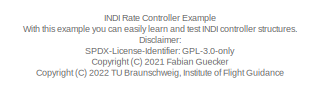
[diagram: root canvas - part 1/4, top center region]
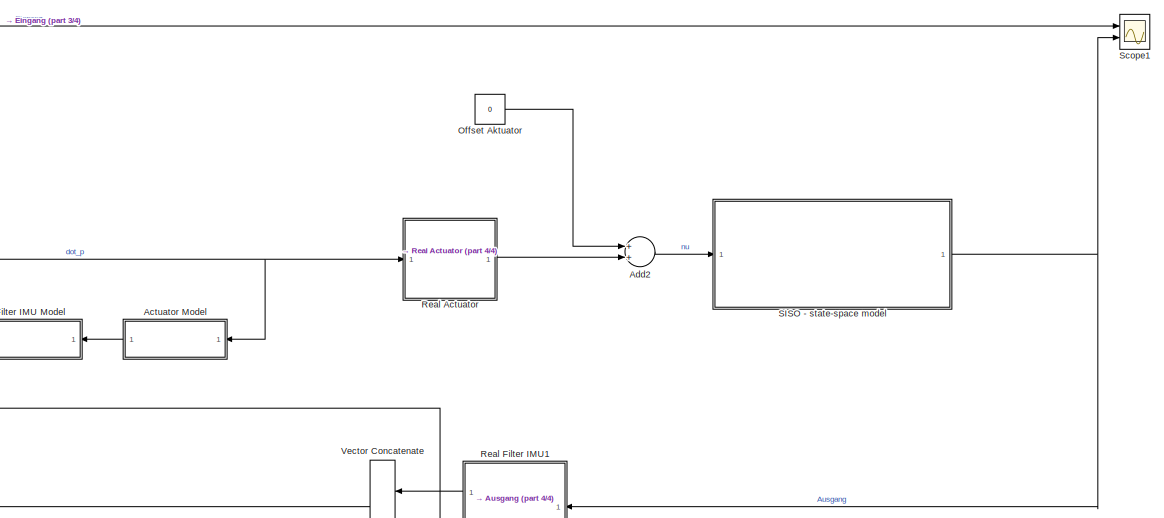
[diagram: root canvas - part 2/4, middle right region]
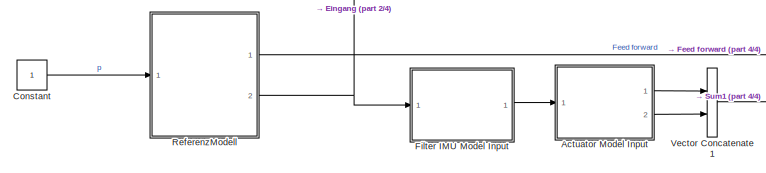
[diagram: root canvas - part 3/4, middle left region]
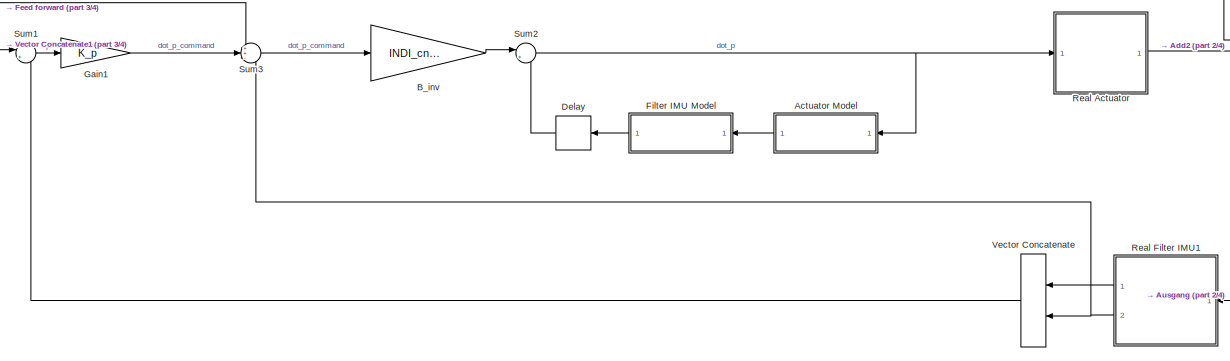
[diagram: root canvas - part 4/4, bottom center region]
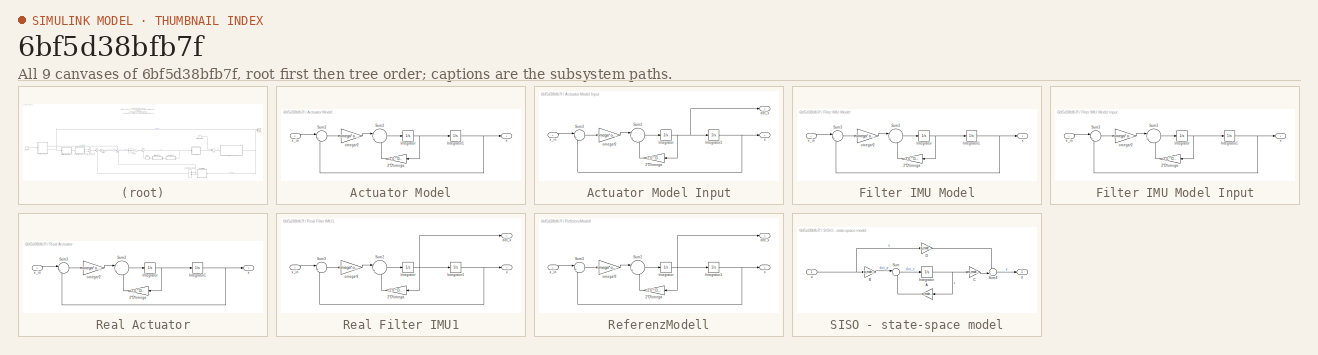
[diagram: thumbnail index - all 9 canvases of the model, root first then tree order]
MODEL slx_6bf5d38bfb7f
KIND model
CONFIG AbsTol = auto
CONFIG EnableMultiTasking = off
CONFIG FixedStep = 0.001
CONFIG MaxStep = auto
CONFIG MinStep = auto
CONFIG RelTol = 1e-3
CONFIG SampleTimeConstraint = Unconstrained
CONFIG Solver = ode4
CONFIG SolverName = ode4
CONFIG StartTime = 0.0
CONFIG StopTime = 5
BLOCK [SubSystem] Actuator Model
  Ports = [1, 1]
  RequestExecContextInheritance = off
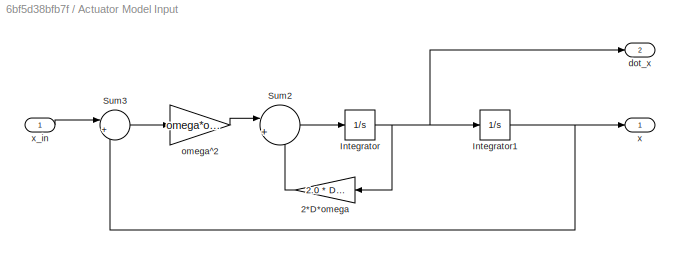
BLOCK [SubSystem] Actuator Model Input
  Ports = [1, 2]
  RequestExecContextInheritance = off
BLOCK [Gain] Actuator Model Input/2*D*omega
  Gain = 2.0 * D* omega
BLOCK [Integrator] Actuator Model Input/Integrator
  Ports = [1, 1]
BLOCK [Integrator] Actuator Model Input/Integrator1
  Ports = [1, 1]
BLOCK [Sum] Actuator Model Input/Sum2
  IconShape = round
  Inputs = |+-
  Ports = [2, 1]
BLOCK [Sum] Actuator Model Input/Sum3
  IconShape = round
  Inputs = |+-
  Ports = [2, 1]
BLOCK [Outport] Actuator Model Input/dot_x
  IconDisplay = Port number
  InitialOutput = 0
  Port = 2
BLOCK [Gain] Actuator Model Input/omega^2
  Gain = omega*omega
BLOCK [Outport] Actuator Model Input/x
  IconDisplay = Port number
  InitialOutput = 0
BLOCK [Inport] Actuator Model Input/x_in
  IconDisplay = Port number
BLOCK [Gain] Actuator Model/2*D*omega
  Gain = 2.0 * D* omega
BLOCK [Integrator] Actuator Model/Integrator
  Ports = [1, 1]
BLOCK [Integrator] Actuator Model/Integrator1
  Ports = [1, 1]
BLOCK [Sum] Actuator Model/Sum2
  IconShape = round
  Inputs = |+-
  Ports = [2, 1]
BLOCK [Sum] Actuator Model/Sum3
  IconShape = round
  Inputs = |+-
  Ports = [2, 1]
BLOCK [Gain] Actuator Model/omega^2
  Gain = omega*omega
BLOCK [Outport] Actuator Model/x
  IconDisplay = Port number
  InitialOutput = 0
BLOCK [Inport] Actuator Model/x_in
  IconDisplay = Port number
BLOCK [Sum] Add2
  InputSameDT = off
  OutDataTypeStr = Inherit: Inherit via internal rule
  Ports = [2, 1]
  SaturateOnIntegerOverflow = off
BLOCK [Gain] B_inv
  Gain = INDI_cntrl.B_inv
  OutDataTypeStr = Inherit: Inherit via internal rule
  ParamDataTypeStr = Inherit: Inherit via internal rule
  SaturateOnIntegerOverflow = off
BLOCK [Constant] Constant
BLOCK [Delay] Delay
  Commented = through
  DelayLength = 1
  InputPortMap = u0
  Ports = [1, 1]
BLOCK [SubSystem] Filter IMU Model
  Ports = [1, 1]
  RequestExecContextInheritance = off
BLOCK [SubSystem] Filter IMU Model Input
  Ports = [1, 1]
  RequestExecContextInheritance = off
BLOCK [Gain] Filter IMU Model Input/2*D*omega
  Gain = 2.0 * D* omega
BLOCK [Integrator] Filter IMU Model Input/Integrator
  Ports = [1, 1]
BLOCK [Integrator] Filter IMU Model Input/Integrator1
  InitialCondition = ref_pos
  Ports = [1, 1]
BLOCK [Sum] Filter IMU Model Input/Sum2
  IconShape = round
  Inputs = |+-
  Ports = [2, 1]
BLOCK [Sum] Filter IMU Model Input/Sum3
  IconShape = round
  Inputs = |+-
  Ports = [2, 1]
BLOCK [Gain] Filter IMU Model Input/omega^2
  Gain = omega*omega
BLOCK [Outport] Filter IMU Model Input/x
  IconDisplay = Port number
  InitialOutput = 0
BLOCK [Inport] Filter IMU Model Input/x_in
  IconDisplay = Port number
BLOCK [Gain] Filter IMU Model/2*D*omega
  Gain = 2.0 * D* omega
BLOCK [Integrator] Filter IMU Model/Integrator
  Ports = [1, 1]
BLOCK [Integrator] Filter IMU Model/Integrator1
  Ports = [1, 1]
BLOCK [Sum] Filter IMU Model/Sum2
  IconShape = round
  Inputs = |+-
  Ports = [2, 1]
BLOCK [Sum] Filter IMU Model/Sum3
  IconShape = round
  Inputs = |+-
  Ports = [2, 1]
BLOCK [Gain] Filter IMU Model/omega^2
  Gain = omega*omega
BLOCK [Outport] Filter IMU Model/x
  IconDisplay = Port number
  InitialOutput = 0
BLOCK [Inport] Filter IMU Model/x_in
  IconDisplay = Port number
BLOCK [Gain] Gain1
  Gain = K_p
  Multiplication = Matrix(K*u)
  OutDataTypeStr = Inherit: Inherit via internal rule
  ParamDataTypeStr = Inherit: Inherit via internal rule
  SaturateOnIntegerOverflow = off
BLOCK [Constant] Offset Aktuator
  Value = 0
BLOCK [SubSystem] Real Actuator
  Ports = [1, 1]
  RequestExecContextInheritance = off
BLOCK [Gain] Real Actuator/2*D*omega
  Gain = 2.0 * D* omega
BLOCK [Integrator] Real Actuator/Integrator
  Ports = [1, 1]
BLOCK [Integrator] Real Actuator/Integrator1
  Ports = [1, 1]
BLOCK [Sum] Real Actuator/Sum2
  IconShape = round
  Inputs = |+-
  Ports = [2, 1]
BLOCK [Sum] Real Actuator/Sum3
  IconShape = round
  Inputs = |+-
  Ports = [2, 1]
BLOCK [Gain] Real Actuator/omega^2
  Gain = omega*omega
BLOCK [Outport] Real Actuator/x
  IconDisplay = Port number
  InitialOutput = 0
BLOCK [Inport] Real Actuator/x_in
  IconDisplay = Port number
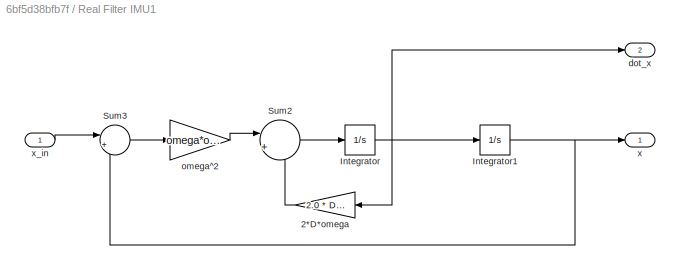
BLOCK [SubSystem] Real Filter IMU1
  Ports = [1, 2]
  RequestExecContextInheritance = off
BLOCK [Gain] Real Filter IMU1/2*D*omega
  Gain = 2.0 * D* omega
BLOCK [Integrator] Real Filter IMU1/Integrator
  Ports = [1, 1]
BLOCK [Integrator] Real Filter IMU1/Integrator1
  Ports = [1, 1]
BLOCK [Sum] Real Filter IMU1/Sum2
  IconShape = round
  Inputs = |+-
  Ports = [2, 1]
BLOCK [Sum] Real Filter IMU1/Sum3
  IconShape = round
  Inputs = |+-
  Ports = [2, 1]
BLOCK [Outport] Real Filter IMU1/dot_x
  IconDisplay = Port number
  InitialOutput = 0
  Port = 2
BLOCK [Gain] Real Filter IMU1/omega^2
  Gain = omega*omega
BLOCK [Outport] Real Filter IMU1/x
  IconDisplay = Port number
  InitialOutput = 0
BLOCK [Inport] Real Filter IMU1/x_in
  IconDisplay = Port number
BLOCK [SubSystem] ReferenzModell
  Ports = [1, 2]
  RequestExecContextInheritance = off
BLOCK [Gain] ReferenzModell/2*D*omega
  Gain = 2.0 * D* omega
BLOCK [Integrator] ReferenzModell/Integrator
  Ports = [1, 1]
BLOCK [Integrator] ReferenzModell/Integrator1
  InitialCondition = ref_pos
  Ports = [1, 1]
BLOCK [Sum] ReferenzModell/Sum2
  IconShape = round
  Inputs = |+-
  Ports = [2, 1]
BLOCK [Sum] ReferenzModell/Sum3
  IconShape = round
  Inputs = |+-
  Ports = [2, 1]
BLOCK [Outport] ReferenzModell/dot_x
  IconDisplay = Port number
  InitialOutput = 0
BLOCK [Gain] ReferenzModell/omega^2
  Gain = omega*omega
BLOCK [Outport] ReferenzModell/x
  IconDisplay = Port number
  InitialOutput = 0
  Port = 2
BLOCK [Inport] ReferenzModell/x_in
  IconDisplay = Port number
BLOCK [SubSystem] SISO - state-space model
  Ports = [1, 1]
  RequestExecContextInheritance = off
BLOCK [Gain] SISO - state-space model/A
  Gain = ss_model.A
  OutDataTypeStr = Inherit: Inherit via internal rule
  ParamDataTypeStr = Inherit: Inherit via internal rule
  SaturateOnIntegerOverflow = off
BLOCK [Gain] SISO - state-space model/B
  Gain = ss_model.B
  OutDataTypeStr = Inherit: Inherit via internal rule
  ParamDataTypeStr = Inherit: Inherit via internal rule
  SaturateOnIntegerOverflow = off
BLOCK [Gain] SISO - state-space model/C
  Gain = ss_model.C
  OutDataTypeStr = Inherit: Inherit via internal rule
  ParamDataTypeStr = Inherit: Inherit via internal rule
  SaturateOnIntegerOverflow = off
BLOCK [Gain] SISO - state-space model/D
  Gain = ss_model.D
  OutDataTypeStr = Inherit: Inherit via internal rule
  ParamDataTypeStr = Inherit: Inherit via internal rule
  SaturateOnIntegerOverflow = off
BLOCK [Integrator] SISO - state-space model/Integrator
  Ports = [1, 1]
BLOCK [Sum] SISO - state-space model/Sum
  IconShape = round
  InputSameDT = off
  Inputs = |++
  OutDataTypeStr = Inherit: Inherit via internal rule
  Ports = [2, 1]
  SaturateOnIntegerOverflow = off
BLOCK [Sum] SISO - state-space model/Sum4
  IconShape = round
  InputSameDT = off
  Inputs = ++|
  OutDataTypeStr = Inherit: Inherit via internal rule
  Ports = [2, 1]
  SaturateOnIntegerOverflow = off
BLOCK [Inport] SISO - state-space model/u
  IconDisplay = Port number
BLOCK [Outport] SISO - state-space model/y
  IconDisplay = Port number
BLOCK [Scope] Scope1
  Floating = off
  NumInputPorts = 2
  Ports = [2]
  ScopeSpecificationString = Simulink.scopes.TimeScopeBlockCfg('CurrentConfiguration', extmgr.ConfigurationSet(extmgr.Configuration('Core','General UI',true),extmgr.Configuration('Core','Source UI',true),extmgr.Configuration('Sources','WiredSimulink',true,'DataLoggingVariableName','ScopeData1'),extmgr.Configuration('Visuals','Time Domain',true,'SerializedDisplays',{struct('MinYLimReal','-0.25','MaxYLimReal','2.25','YLabelReal...<+1500ch>
BLOCK [Sum] Sum1
  IconShape = round
  InputSameDT = off
  Inputs = |+-
  OutDataTypeStr = Inherit: Inherit via internal rule
  Ports = [2, 1]
  SaturateOnIntegerOverflow = off
BLOCK [Sum] Sum2
  IconShape = round
  InputSameDT = off
  Inputs = |++
  OutDataTypeStr = Inherit: Inherit via internal rule
  Ports = [2, 1]
  SaturateOnIntegerOverflow = off
BLOCK [Sum] Sum3
  IconShape = round
  InputSameDT = off
  Inputs = ++-
  OutDataTypeStr = Inherit: Inherit via internal rule
  Ports = [3, 1]
  SaturateOnIntegerOverflow = off
BLOCK [Concatenate] Vector Concatenate
  Ports = [2, 1]
BLOCK [Concatenate] Vector Concatenate1
  Ports = [2, 1]
ANNOTATION (root): INDI Rate Controller Example With this example you can easily learn and test INDI controller structures. Disclaimer: SPDX-License-Identifier: GPL-3.0-only <copyright redacted>
LINE Actuator Model Input/2*D*omega:1 -> Actuator Model Input/Sum2:2
NET Actuator Model Input/Integrator1:1 -> Actuator Model Input/Sum3:2, Actuator Model Input/x:1
NET Actuator Model Input/Integrator:1 -> Actuator Model Input/2*D*omega:1, Actuator Model Input/Integrator1:1, Actuator Model Input/dot_x:1
LINE Actuator Model Input/Sum2:1 -> Actuator Model Input/Integrator:1
LINE Actuator Model Input/Sum3:1 -> Actuator Model Input/omega^2:1
LINE Actuator Model Input/omega^2:1 -> Actuator Model Input/Sum2:1
LINE Actuator Model Input/x_in:1 -> Actuator Model Input/Sum3:1
LINE Actuator Model Input:1 -> Vector Concatenate1:1
LINE Actuator Model Input:2 -> Vector Concatenate1:2
LINE Actuator Model/2*D*omega:1 -> Actuator Model/Sum2:2
NET Actuator Model/Integrator1:1 -> Actuator Model/Sum3:2, Actuator Model/x:1
NET Actuator Model/Integrator:1 -> Actuator Model/2*D*omega:1, Actuator Model/Integrator1:1
LINE Actuator Model/Sum2:1 -> Actuator Model/Integrator:1
LINE Actuator Model/Sum3:1 -> Actuator Model/omega^2:1
LINE Actuator Model/omega^2:1 -> Actuator Model/Sum2:1
LINE Actuator Model/x_in:1 -> Actuator Model/Sum3:1
LINE Actuator Model:1 -> Filter IMU Model:1
LINE Add2:1 -> SISO - state-space model:1
LINE B_inv:1 -> Sum2:1
LINE Constant:1 -> ReferenzModell:1
LINE Delay:1 -> Sum2:2
LINE Filter IMU Model Input/2*D*omega:1 -> Filter IMU Model Input/Sum2:2
NET Filter IMU Model Input/Integrator1:1 -> Filter IMU Model Input/Sum3:2, Filter IMU Model Input/x:1
NET Filter IMU Model Input/Integrator:1 -> Filter IMU Model Input/2*D*omega:1, Filter IMU Model Input/Integrator1:1
LINE Filter IMU Model Input/Sum2:1 -> Filter IMU Model Input/Integrator:1
LINE Filter IMU Model Input/Sum3:1 -> Filter IMU Model Input/omega^2:1
LINE Filter IMU Model Input/omega^2:1 -> Filter IMU Model Input/Sum2:1
LINE Filter IMU Model Input/x_in:1 -> Filter IMU Model Input/Sum3:1
LINE Filter IMU Model Input:1 -> Actuator Model Input:1
LINE Filter IMU Model/2*D*omega:1 -> Filter IMU Model/Sum2:2
NET Filter IMU Model/Integrator1:1 -> Filter IMU Model/Sum3:2, Filter IMU Model/x:1
NET Filter IMU Model/Integrator:1 -> Filter IMU Model/2*D*omega:1, Filter IMU Model/Integrator1:1
LINE Filter IMU Model/Sum2:1 -> Filter IMU Model/Integrator:1
LINE Filter IMU Model/Sum3:1 -> Filter IMU Model/omega^2:1
LINE Filter IMU Model/omega^2:1 -> Filter IMU Model/Sum2:1
LINE Filter IMU Model/x_in:1 -> Filter IMU Model/Sum3:1
LINE Filter IMU Model:1 -> Delay:1
LINE Gain1:1 -> Sum3:2
LINE Offset Aktuator:1 -> Add2:1
LINE Real Actuator/2*D*omega:1 -> Real Actuator/Sum2:2
NET Real Actuator/Integrator1:1 -> Real Actuator/Sum3:2, Real Actuator/x:1
NET Real Actuator/Integrator:1 -> Real Actuator/2*D*omega:1, Real Actuator/Integrator1:1
LINE Real Actuator/Sum2:1 -> Real Actuator/Integrator:1
LINE Real Actuator/Sum3:1 -> Real Actuator/omega^2:1
LINE Real Actuator/omega^2:1 -> Real Actuator/Sum2:1
LINE Real Actuator/x_in:1 -> Real Actuator/Sum3:1
LINE Real Actuator:1 -> Add2:2
LINE Real Filter IMU1/2*D*omega:1 -> Real Filter IMU1/Sum2:2
NET Real Filter IMU1/Integrator1:1 -> Real Filter IMU1/Sum3:2, Real Filter IMU1/x:1
NET Real Filter IMU1/Integrator:1 -> Real Filter IMU1/2*D*omega:1, Real Filter IMU1/Integrator1:1, Real Filter IMU1/dot_x:1
LINE Real Filter IMU1/Sum2:1 -> Real Filter IMU1/Integrator:1
LINE Real Filter IMU1/Sum3:1 -> Real Filter IMU1/omega^2:1
LINE Real Filter IMU1/omega^2:1 -> Real Filter IMU1/Sum2:1
LINE Real Filter IMU1/x_in:1 -> Real Filter IMU1/Sum3:1
LINE Real Filter IMU1:1 -> Vector Concatenate:1
NET Real Filter IMU1:2 -> Sum3:3, Vector Concatenate:2
LINE ReferenzModell/2*D*omega:1 -> ReferenzModell/Sum2:2
NET ReferenzModell/Integrator1:1 -> ReferenzModell/Sum3:2, ReferenzModell/x:1
NET ReferenzModell/Integrator:1 -> ReferenzModell/2*D*omega:1, ReferenzModell/Integrator1:1, ReferenzModell/dot_x:1
LINE ReferenzModell/Sum2:1 -> ReferenzModell/Integrator:1
LINE ReferenzModell/Sum3:1 -> ReferenzModell/omega^2:1
LINE ReferenzModell/omega^2:1 -> ReferenzModell/Sum2:1
LINE ReferenzModell/x_in:1 -> ReferenzModell/Sum3:1
LINE ReferenzModell:1 -> Sum3:1
NET ReferenzModell:2 -> Filter IMU Model Input:1, Scope1:1
LINE SISO - state-space model/A:1 -> SISO - state-space model/Sum:2
LINE SISO - state-space model/B:1 -> SISO - state-space model/Sum:1
LINE SISO - state-space model/C:1 -> SISO - state-space model/Sum4:2
LINE SISO - state-space model/D:1 -> SISO - state-space model/Sum4:1
NET SISO - state-space model/Integrator:1 -> SISO - state-space model/A:1, SISO - state-space model/C:1
LINE SISO - state-space model/Sum4:1 -> SISO - state-space model/y:1
LINE SISO - state-space model/Sum:1 -> SISO - state-space model/Integrator:1
NET SISO - state-space model/u:1 -> SISO - state-space model/B:1, SISO - state-space model/D:1
NET SISO - state-space model:1 -> Real Filter IMU1:1, Scope1:2
LINE Sum1:1 -> Gain1:1
NET Sum2:1 -> Actuator Model:1, Real Actuator:1
LINE Sum3:1 -> B_inv:1
LINE Vector Concatenate1:1 -> Sum1:1
LINE Vector Concatenate:1 -> Sum1:2
note: NET lines group one-source signal fan-out (src -> all destinations, sorted); 1:1 wires keep LINE
